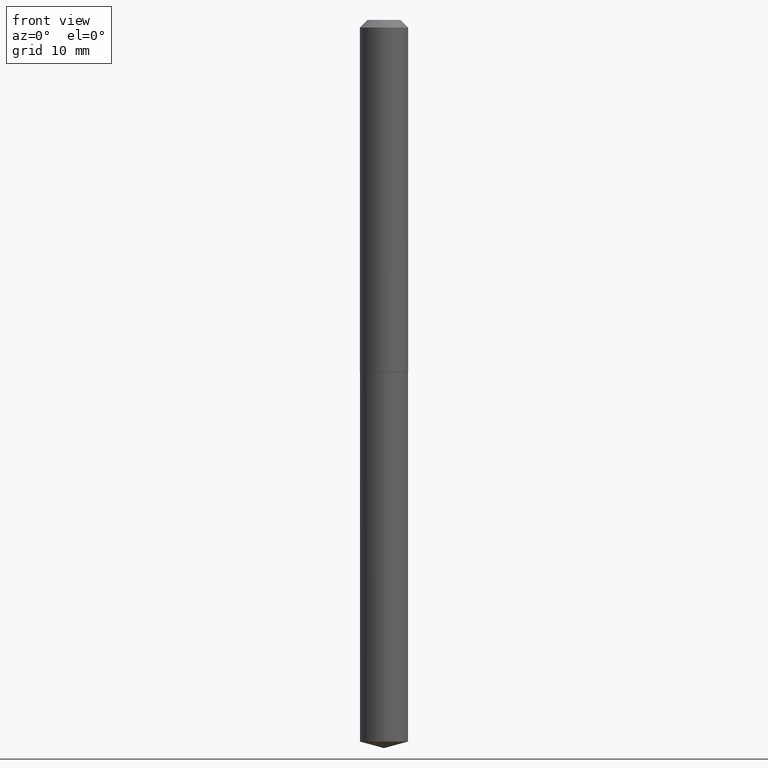
[diagram: clean part render]
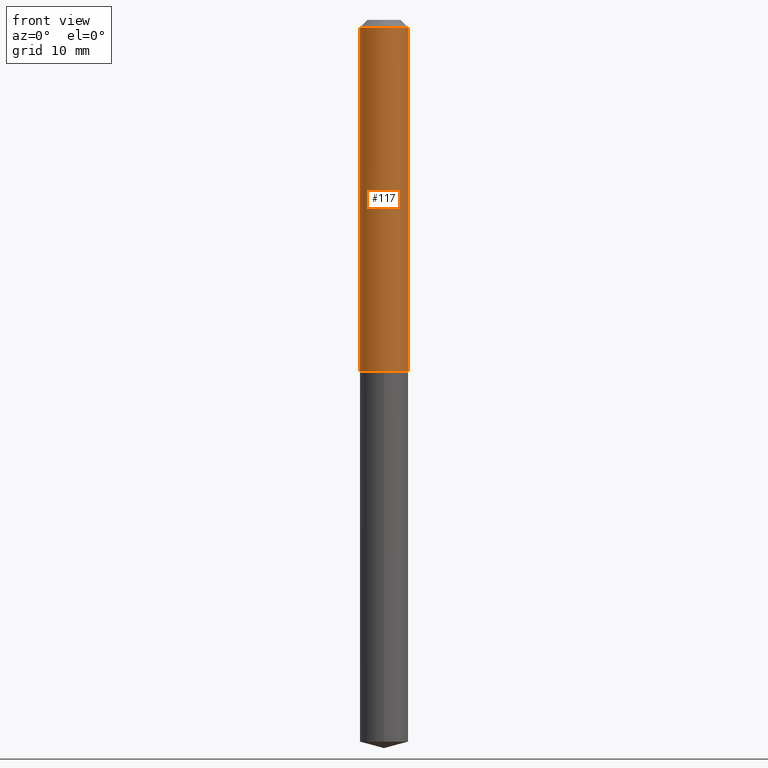
[diagram: same view with one face highlighted and labeled with its STEP entity id]
A machine part, front view. The second image highlights one B-rep face of the part: STEP entity #117.
In plain terms, the highlighted cylindrical surface (edge-blend (fillet) strip) has radius 2.5273 mm, axis along (-0, 0, 1).
Its self-contained STEP definition (entity closure, byte-faithful):
#2 = CARTESIAN_POINT ( 'NONE',  ( 3.542261565759171006E-29, -5.057410719314297787E-15, -1.448500000000000343 ) ) ;
#10 = CARTESIAN_POINT ( 'NONE',  ( -0.09950000000000000511, -1.876269733495272342E-15, -0.03125000000000019429 ) ) ;
#12 = CYLINDRICAL_SURFACE ( 'NONE', #257, 0.09950000000000008837 ) ;
#17 = EDGE_CURVE ( 'NONE', #272, #21, #89, .T. ) ;
#21 = VERTEX_POINT ( 'NONE', #179 ) ;
#32 = VECTOR ( 'NONE', #377, 39.37007874015748143 ) ;
#37 = EDGE_CURVE ( 'NONE', #351, #216, #316, .T. ) ;
#38 = AXIS2_PLACEMENT_3D ( 'NONE', #2, #120, #239 ) ;
#78 = CARTESIAN_POINT ( 'NONE',  ( -0.09950000000000008837, 7.069900220813003129E-16, -4.894340414803635936E-30 ) ) ;
#89 = CIRCLE ( 'NONE', #161, 0.09950000000000000511 ) ;
#99 = DIRECTION ( 'NONE',  ( -2.445468806185136597E-29, 3.491481338843145583E-15, 1.000000000000000000 ) ) ;
#111 = DIRECTION ( 'NONE',  ( 1.000000000000000000, -6.982962677686266711E-15, 0.000000000000000000 ) ) ;
#117 = ADVANCED_FACE ( 'NONE', ( #339 ), #12, .T. ) ;
#120 = DIRECTION ( 'NONE',  ( -2.445468806185136597E-29, 3.491481338843145583E-15, 1.000000000000000000 ) ) ;
#128 = EDGE_CURVE ( 'NONE', #216, #21, #356, .T. ) ;
#150 = DIRECTION ( 'NONE',  ( 1.000000000000000000, -6.982962677686266711E-15, 4.876176775795936353E-29 ) ) ;
#155 = EDGE_CURVE ( 'NONE', #351, #272, #204, .T. ) ;
#161 = AXIS2_PLACEMENT_3D ( 'NONE', #261, #354, #111 ) ;
#179 = CARTESIAN_POINT ( 'NONE',  ( 0.09950000000000000511, -8.039135782686324687E-16, -0.03125000000000019429 ) ) ;
#195 = CARTESIAN_POINT ( 'NONE',  ( -0.09950000000000015776, -4.350420697232997869E-15, -1.448500000000000343 ) ) ;
#201 = ORIENTED_EDGE ( 'NONE', *, *, #17, .F. ) ;
#204 = LINE ( 'NONE', #78, #280 ) ;
#216 = VERTEX_POINT ( 'NONE', #335 ) ;
#239 = DIRECTION ( 'NONE',  ( 1.000000000000000000, -6.982962677686267499E-15, 0.000000000000000000 ) ) ;
#252 = CARTESIAN_POINT ( 'NONE',  ( 0.000000000000000000, 0.000000000000000000, 0.000000000000000000 ) ) ;
#256 = CARTESIAN_POINT ( 'NONE',  ( 0.09950000000000008837, -6.948047864297841570E-16, 4.851795891916960794E-30 ) ) ;
#257 = AXIS2_PLACEMENT_3D ( 'NONE', #252, #99, #150 ) ;
#261 = CARTESIAN_POINT ( 'NONE',  ( 7.642090019328598283E-31, -1.091087918388489651E-16, -0.03125000000000019429 ) ) ;
#268 = ORIENTED_EDGE ( 'NONE', *, *, #155, .F. ) ;
#272 = VERTEX_POINT ( 'NONE', #10 ) ;
#280 = VECTOR ( 'NONE', #293, 39.37007874015748143 ) ;
#293 = DIRECTION ( 'NONE',  ( -2.445468806185136877E-29, 3.491481338843145188E-15, 1.000000000000000000 ) ) ;
#301 = ORIENTED_EDGE ( 'NONE', *, *, #128, .T. ) ;
#307 = ORIENTED_EDGE ( 'NONE', *, *, #37, .T. ) ;
#309 = EDGE_LOOP ( 'NONE', ( #268, #307, #301, #201 ) ) ;
#316 = CIRCLE ( 'NONE', #38, 0.09950000000000015776 ) ;
#335 = CARTESIAN_POINT ( 'NONE',  ( 0.09950000000000015776, -5.752215505744083029E-15, -1.448500000000000343 ) ) ;
#339 = FACE_OUTER_BOUND ( 'NONE', #309, .T. ) ;
#351 = VERTEX_POINT ( 'NONE', #195 ) ;
#354 = DIRECTION ( 'NONE',  ( -2.445468806185136597E-29, 3.491481338843145583E-15, 1.000000000000000000 ) ) ;
#356 = LINE ( 'NONE', #256, #32 ) ;
#377 = DIRECTION ( 'NONE',  ( -2.445468806185136877E-29, 3.491481338843145188E-15, 1.000000000000000000 ) ) ;